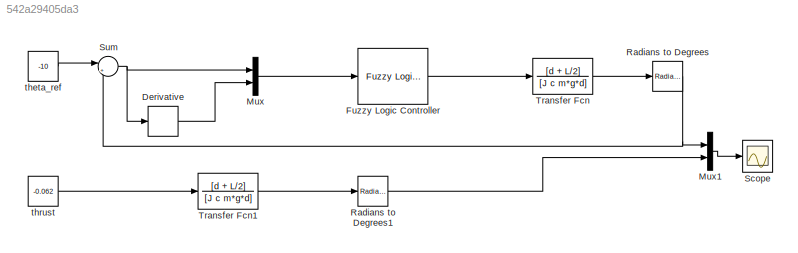
MODEL slx_542a29405da3
KIND model
CONFIG AbsTol = auto
CONFIG EnableMultiTasking = off
CONFIG FixedStep = auto
CONFIG MaxStep = auto
CONFIG MinStep = auto
CONFIG RelTol = 1e-3
CONFIG SampleTimeConstraint = Unconstrained
CONFIG SolverName = VariableStepAuto
CONFIG StartTime = 0.0
CONFIG StopTime = 80
BLOCK [Derivative] Derivative
BLOCK [Reference] Fuzzy Logic Controller  REF=fuzblock/Fuzzy Logic   (lib defined in mdl_858b3b3e7478)
Controller
  SourceBlock = fuzblock/Fuzzy Logic \nController
  SourceType = Fuzzy Inference System
BLOCK [Mux] Mux
  DisplayOption = bar
  Inputs = 2
BLOCK [Mux] Mux1
  DisplayOption = bar
  Inputs = 2
BLOCK [Reference] Radians to Degrees  REF=simulink_extras/Transformations/Radians
to Degrees
  SourceBlock = simulink_extras/Transformations/Radians\nto Degrees
  SourceType = RadiansToDegrees
BLOCK [Reference] Radians to Degrees1  REF=simulink_extras/Transformations/Radians
to Degrees
  SourceBlock = simulink_extras/Transformations/Radians\nto Degrees
  SourceType = RadiansToDegrees
BLOCK [Scope] Scope
  Floating = off
  NumInputPorts = 1
  ScopeSpecificationString = Simulink.scopes.TimeScopeBlockCfg('CurrentConfiguration', extmgr.ConfigurationSet(extmgr.Configuration('Core','General UI',true),extmgr.Configuration('Core','Source UI',true),extmgr.Configuration('Sources','WiredSimulink',true),extmgr.Configuration('Visuals','Time Domain',true,'SerializedDisplays',{struct('MinYLimReal','-22.08663','MaxYLimReal','2.45407','YLabelReal','','MinYLimMag','0.00000','Max...<+1483ch>
BLOCK [Sum] Sum
  Inputs = |+-
BLOCK [TransferFcn] Transfer Fcn
  Denominator = [J c m*g*d]
  Numerator = [d + L/2]
BLOCK [TransferFcn] Transfer Fcn1
  Denominator = [J c m*g*d]
  Numerator = [d + L/2]
BLOCK [Constant] theta_ref
  Value = -10
BLOCK [Constant] thrust
  Value = -0.062
LINE Derivative:1 -> Mux:2
LINE Fuzzy Logic Controller:1 -> Transfer Fcn:1
LINE Mux1:1 -> Scope:1
LINE Mux:1 -> Fuzzy Logic Controller:1
LINE Radians to Degrees1:1 -> Mux1:2
NET Radians to Degrees:1 -> Mux1:1, Sum:2
NET Sum:1 -> Derivative:1, Mux:1
LINE Transfer Fcn1:1 -> Radians to Degrees1:1
LINE Transfer Fcn:1 -> Radians to Degrees:1
LINE theta_ref:1 -> Sum:1
LINE thrust:1 -> Transfer Fcn1:1
note: NET lines group one-source signal fan-out (src -> all destinations, sorted); 1:1 wires keep LINE
